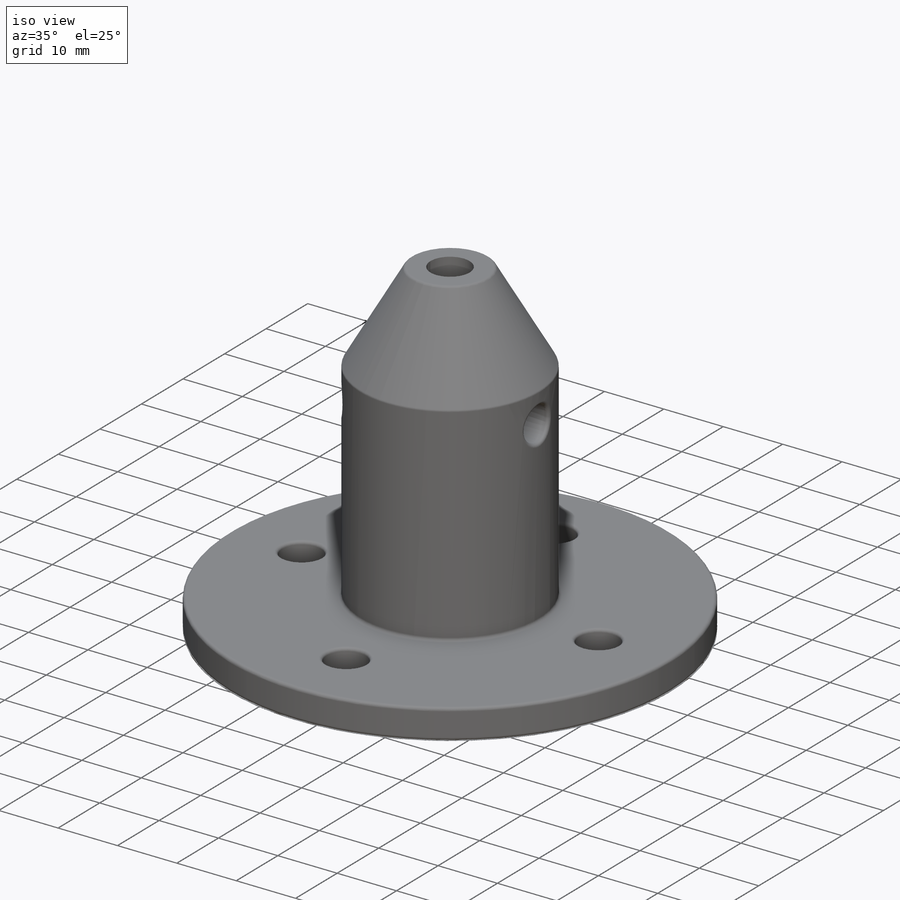
[diagram: iso view]
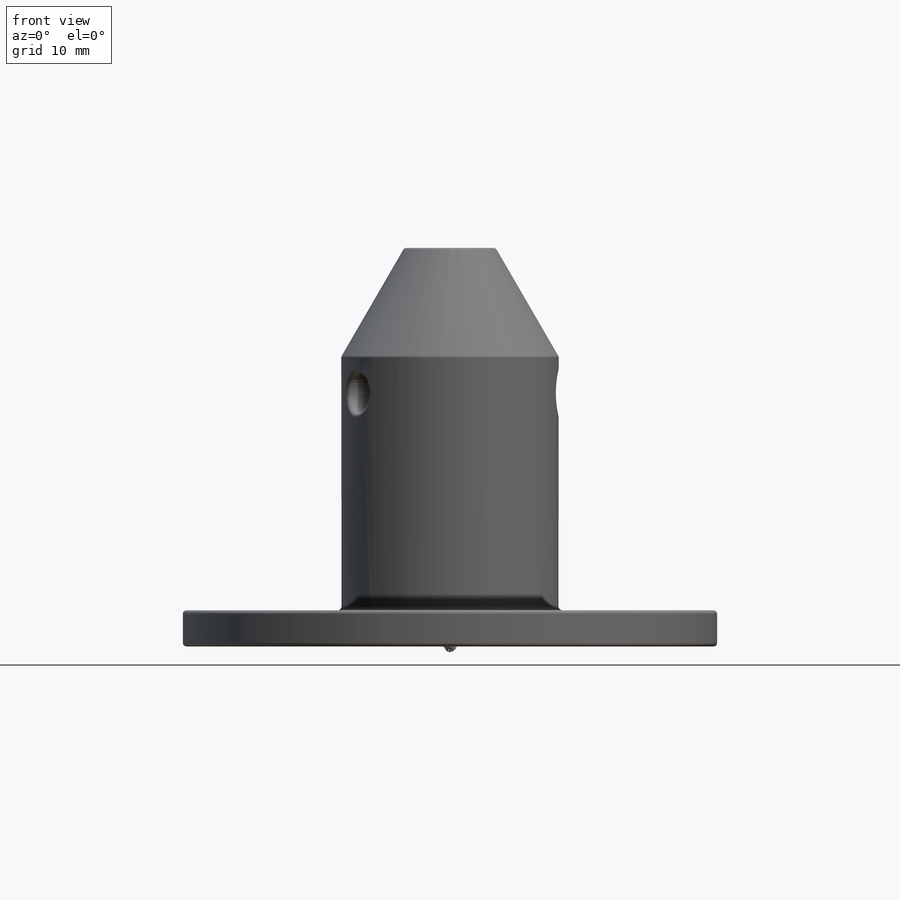
[diagram: front view]
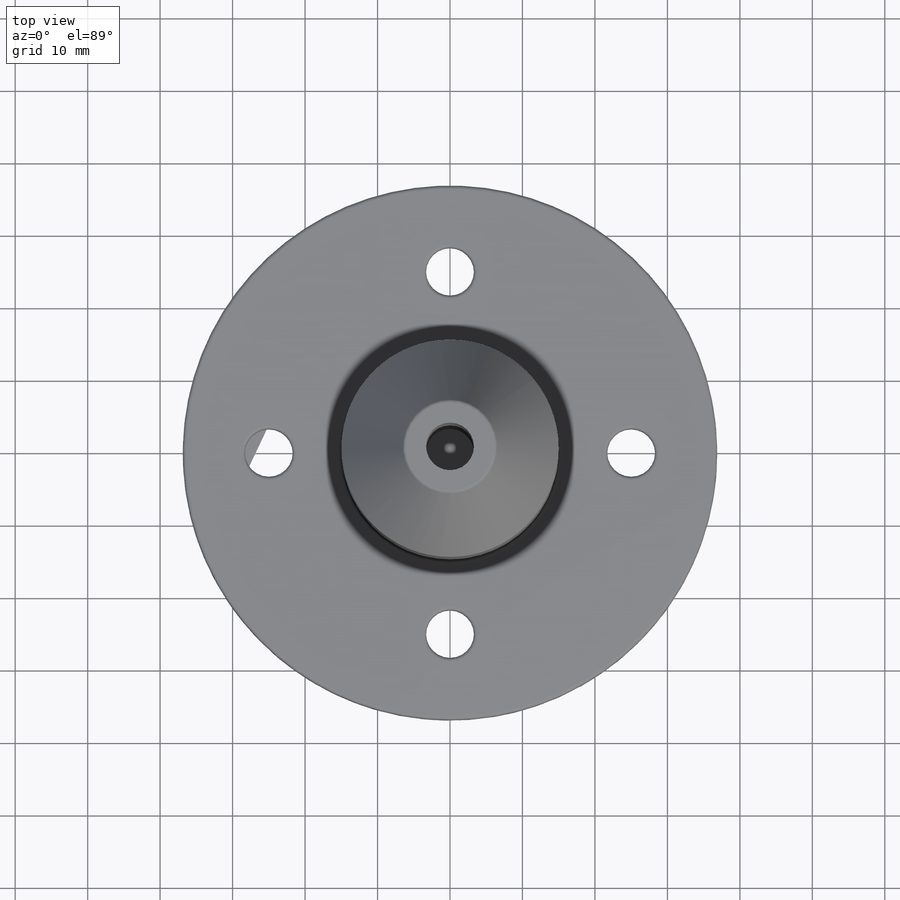
[diagram: top view]
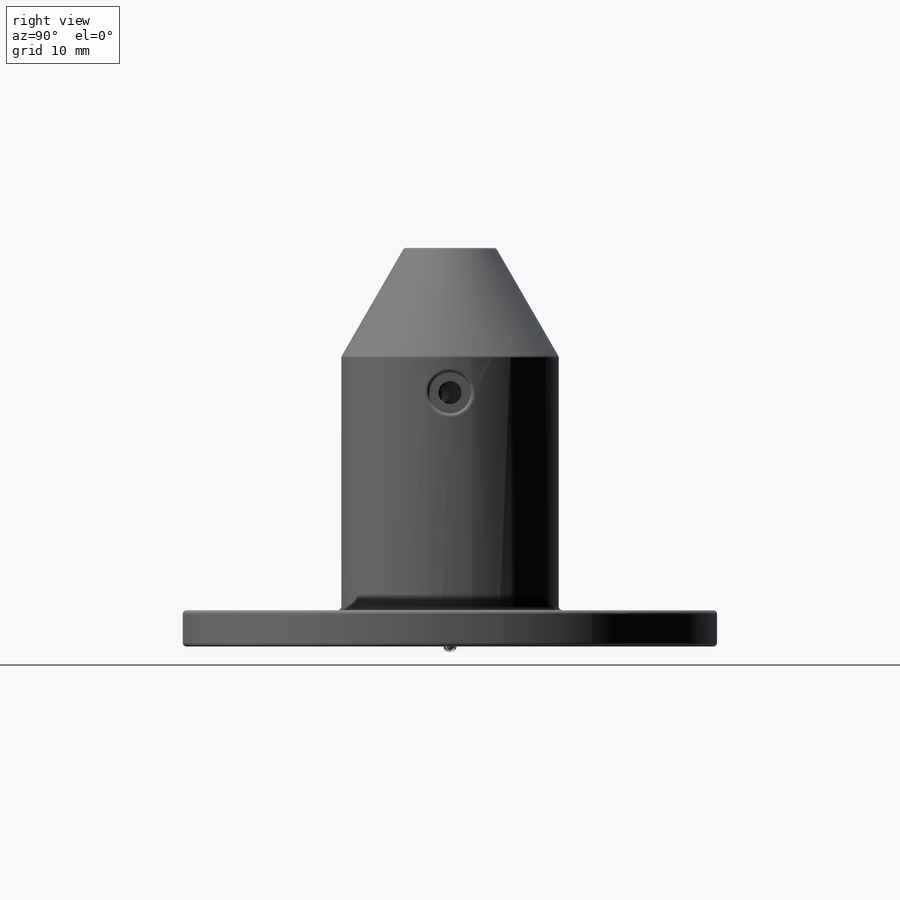
[diagram: right view]
SOLIDWORKS PART (.sldprt)
format: sldprt  version: not decoded by parser v0  size: 515,072 bytes
history: native  units: mm
features: sketch x10, cut_extrude x6, plane x5, extrude x2, material x1, hole x1, chamfer x1, fillet x1 (+13 scaffold rows collapsed)
feature tree (40):
  scaffold x13  (default folders/planes/origin — collapsed)
  material  "ABS"
  sketch  "Sketch1"  dims[D1=73.75mm]
  extrude  "Boss-Extrude1"  Depth=5mm
  sketch  "Sketch2"  dims[D1=30.0mm D2=6.6mm]
  extrude  "Boss-Extrude2"  Depth=50mm
  hole  "M6 Clearance Hole1"  Diameter=6.6mm Depth=5mm
  sketch  "Sketch4"  dims[D2=25.0mm D1=4.0]
  sketch  "Sketch3"  dims[hole-wizard template sketch: 60 standard entries collapsed; hole parameters kept: c18.Thru Hole Depth=5.0mm]
  chamfer  "Chamfer1"  Distance=15mm Angle=30deg
  plane  "Plane1"  Offset=6mm
  plane  "Plane2"
  plane  "Plane3"  Offset=6mm
  sketch  "Sketch8"  dims[D1=3.2mm D2=35.0mm]
  cut_extrude  "Cut-Extrude3"  Depth=6mm
  sketch  "Sketch9"  dims[D2=3.2mm D1=35.0mm]
  cut_extrude  "Cut-Extrude4"  Depth=6mm
  sketch  "Sketch5"  dims[D1=5.92mm D2=35.0mm]
  cut_extrude  "Cut-Extrude1"  Depth=2.76mm
  sketch  "Sketch6"  dims[D1=5.92mm D2=35.0mm]
  cut_extrude  "Cut-Extrude2"  Depth=2.76mm
  plane  "Plane4"  Offset=5mm
  plane  "Plane5"  Offset=5mm
  sketch  "Sketch11"  dims[D1=5.7mm]
  cut_extrude  "Cut-Extrude5"  [1 undecoded]
  sketch  "Sketch13"  dims[D1=5.7mm]
  cut_extrude  "Cut-Extrude6"  [1 undecoded]
  fillet  "Fillet1"  Radius=0.5mm
decode coverage: 19 of 21 modeling features carry decoded parameters
note: ~ marks probable driven/reference dimensions
note: 2 parameter values undecoded
note: suppression state not decoded; provenance and decode notes live in map.json
